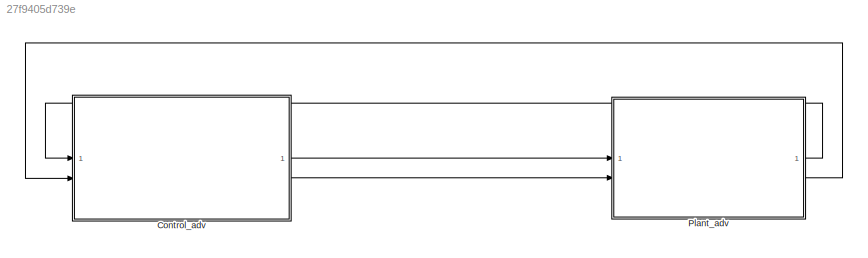
MODEL slx_27f9405d739e
KIND model
CONFIG AbsTol = auto
CONFIG EnableMultiTasking = on
CONFIG FixedStep = 0.05
CONFIG MaxStep = auto
CONFIG MinStep = auto
CONFIG RelTol = 1e-3
CONFIG SampleTimeConstraint = Unconstrained
CONFIG SolverName = FixedStepDiscrete
CONFIG StartTime = 0.0
CONFIG StopTime = 10.0
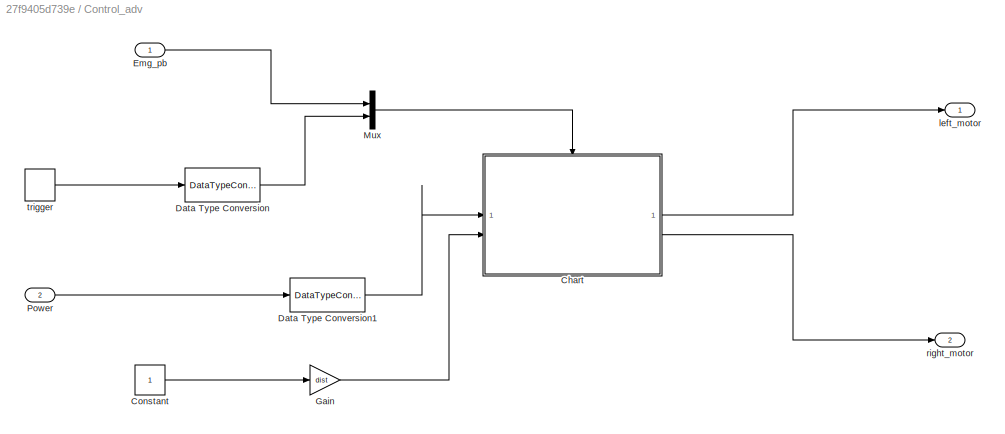
BLOCK [SubSystem] Control_adv
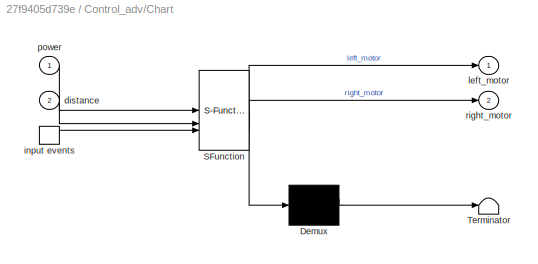
BLOCK [SubSystem] Control_adv/Chart
  ErrorFcn = Stateflow.Translate.translate
  PermitHierarchicalResolution = ExplicitOnly
  SFBlockType = Chart
  TreatAsAtomicUnit = on
BLOCK [Demux] Control_adv/Chart/ Demux 
  Outputs = 1
BLOCK [S-Function] Control_adv/Chart/ SFunction 
  EnableBusSupport = on
  FunctionName = sf_sfun
  PortCounts = [3 3]
  SFcnIsStateOwnerBlock = off
  SFunctionDeploymentMode = off
  Tag = Stateflow S-Function 3
BLOCK [Terminator] Control_adv/Chart/ Terminator 
BLOCK [Inport] Control_adv/Chart/distance
  Port = 2
BLOCK [TriggerPort] Control_adv/Chart/input events
  ShowOutputPort = on
  StatesWhenEnabling = held
  VariantControl = (inherit)
BLOCK [Outport] Control_adv/Chart/left_motor
BLOCK [Inport] Control_adv/Chart/power
BLOCK [Outport] Control_adv/Chart/right_motor
  Port = 2
BLOCK [Constant] Control_adv/Constant
BLOCK [DataTypeConversion] Control_adv/Data Type Conversion
  OutDataTypeStr = uint8
  RndMeth = Floor
  SaturateOnIntegerOverflow = off
BLOCK [DataTypeConversion] Control_adv/Data Type Conversion1
  OutDataTypeStr = double
  RndMeth = Floor
  SaturateOnIntegerOverflow = off
BLOCK [Inport] Control_adv/Emg_pb
BLOCK [Gain] Control_adv/Gain
  Gain = dist
BLOCK [Mux] Control_adv/Mux
  DisplayOption = bar
  Inputs = 2
BLOCK [Inport] Control_adv/Power
  Port = 2
BLOCK [Outport] Control_adv/left_motor
BLOCK [Outport] Control_adv/right_motor
  Port = 2
BLOCK [DiscretePulseGenerator] Control_adv/trigger
  Period = 3
  PulseWidth = 2
  SampleTime = 0.05
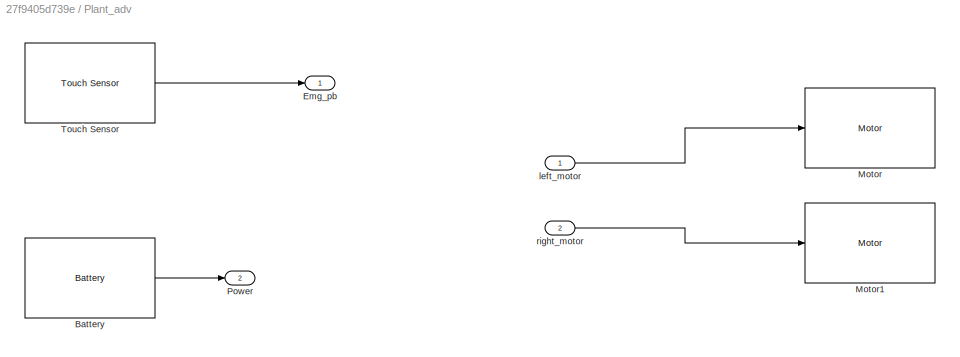
BLOCK [SubSystem] Plant_adv
BLOCK [Reference] Plant_adv/Battery  REF=legoev3lib/Battery
  SourceBlock = legoev3lib/Battery
  SourceType = ev3.ev3_Battery
BLOCK [Outport] Plant_adv/Emg_pb
BLOCK [Reference] Plant_adv/Motor  REF=legoev3lib/Motor
  SourceBlock = legoev3lib/Motor
  SourceType = LEGO MINDSTORMS EV3 Motor
BLOCK [Reference] Plant_adv/Motor1  REF=legoev3lib/Motor
  SourceBlock = legoev3lib/Motor
  SourceType = LEGO MINDSTORMS EV3 Motor
BLOCK [Outport] Plant_adv/Power
  Port = 2
BLOCK [Reference] Plant_adv/Touch Sensor  REF=legoev3lib/Touch Sensor
  SourceBlock = legoev3lib/Touch Sensor
  SourceType = LEGO MINDSTORMS EV3 Touch Sensor
BLOCK [Inport] Plant_adv/left_motor
BLOCK [Inport] Plant_adv/right_motor
  Port = 2
LINE Control_adv/Chart:1 -> Control_adv/left_motor:1
LINE Control_adv/Chart:2 -> Control_adv/right_motor:1
LINE Control_adv/Constant:1 -> Control_adv/Gain:1
LINE Control_adv/Data Type Conversion1:1 -> Control_adv/Chart:1
LINE Control_adv/Data Type Conversion:1 -> Control_adv/Mux:2
LINE Control_adv/Emg_pb:1 -> Control_adv/Mux:1
LINE Control_adv/Gain:1 -> Control_adv/Chart:2
LINE Control_adv/Mux:1 -> Control_adv/Chart:trigger
LINE Control_adv/Power:1 -> Control_adv/Data Type Conversion1:1
LINE Control_adv/trigger:1 -> Control_adv/Data Type Conversion:1
LINE Control_adv:1 -> Plant_adv:1
LINE Control_adv:2 -> Plant_adv:2
LINE Plant_adv/Battery:1 -> Plant_adv/Power:1
LINE Plant_adv/Touch Sensor:1 -> Plant_adv/Emg_pb:1
LINE Plant_adv/left_motor:1 -> Plant_adv/Motor:1
LINE Plant_adv/right_motor:1 -> Plant_adv/Motor1:1
LINE Plant_adv:1 -> Control_adv:1
LINE Plant_adv:2 -> Control_adv:2
CHART Control_adv/Chart states=3 transitions=12
  STATE_LABEL 'OFF\nentry:\nright_motor=0;\nleft_motor=0;\nc=0;\n'
  STATE_LABEL 'ON\nright_motor =power;\nleft_motor =power;\n'
  STATE_LABEL 'square\nentry:\nright_motor= 0;\nleft_motor=power;\n'
CHART  states=0 transitions=0
